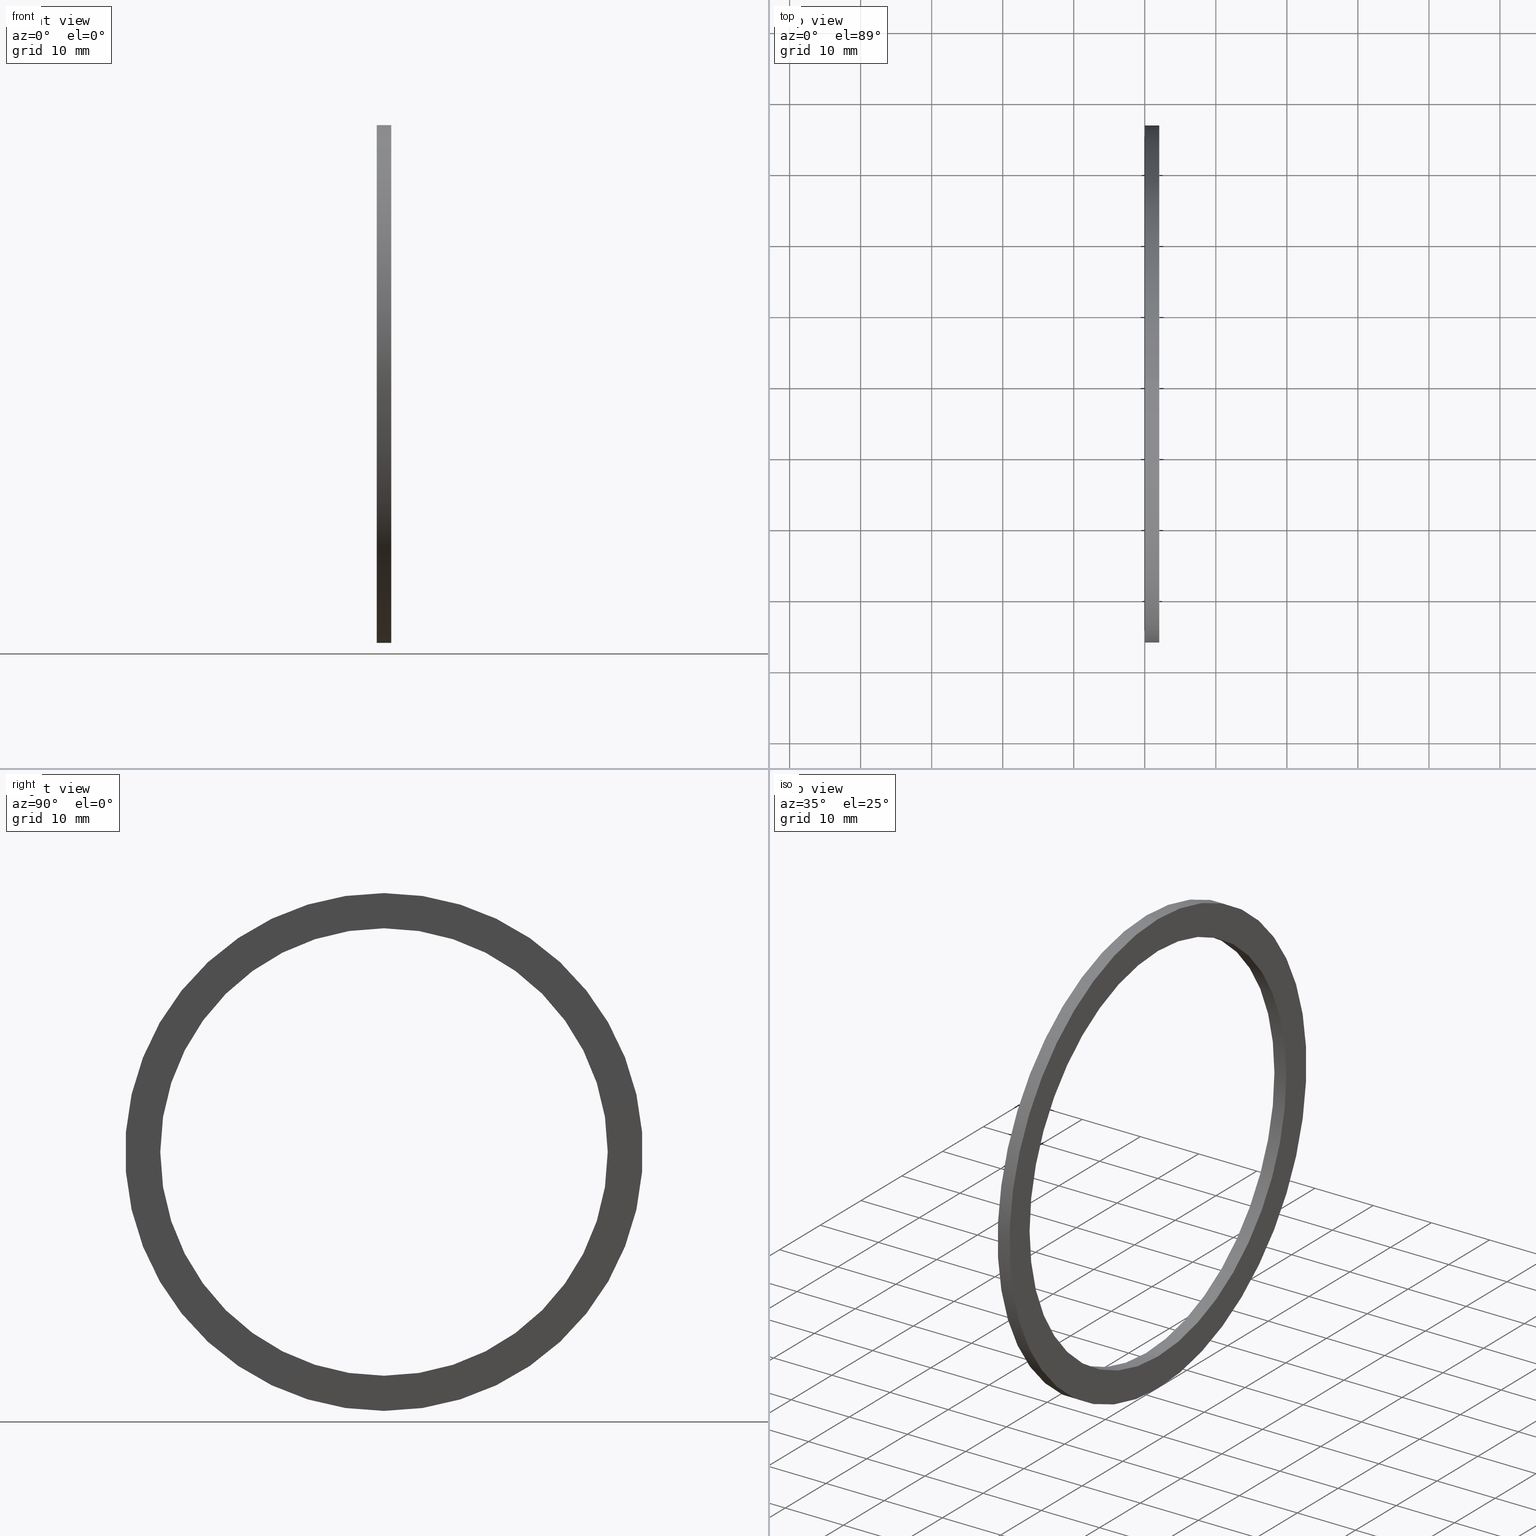
[diagram: canonical four-view strip — front | top / right | iso, engineering-drawing reading convention]
A machine part, canonical four-view strip (front | top / right | iso — engineering-drawing reading convention). The complete STEP part file that produces these views, byte-faithful:
ISO-10303-21;
HEADER;
FILE_DESCRIPTION (( 'STEP AP203' ),
    '1' );
FILE_NAME ('SM-63-VT.STEP',
    '2008-06-25T06:22:19',
    ( 'BSI05' ),
    ( 'BAYSTATE' ),
    'SwSTEP 2.0',
    'SolidWorks 2007',
    '' );
FILE_SCHEMA (( 'CONFIG_CONTROL_DESIGN' ));
ENDSEC;

DATA;
#1 = AXIS2_PLACEMENT_3D ( 'NONE', #206, #129, #218 ) ;
#2 = CLOSED_SHELL ( 'NONE', ( #61, #54, #39, #10, #51, #47 ) ) ;
#3 = EDGE_CURVE ( 'NONE', #67, #66, #20, .T. ) ;
#4 = ORIENTED_EDGE ( 'NONE', *, *, #35, .T. ) ;
#5 = EDGE_LOOP ( 'NONE', ( #43, #36 ) ) ;
#6 = EDGE_CURVE ( 'NONE', #24, #49, #15, .T. ) ;
#7 = EDGE_LOOP ( 'NONE', ( #8, #28 ) ) ;
#8 = ORIENTED_EDGE ( 'NONE', *, *, #27, .F. ) ;
#9 = EDGE_CURVE ( 'NONE', #49, #24, #84, .T. ) ;
#10 = ADVANCED_FACE ( 'NONE', ( #85 ), #77, .T. ) ;
#11 = ORIENTED_EDGE ( 'NONE', *, *, #9, .F. ) ;
#12 = DIRECTION ( 'NONE',  ( 0.0000000000000000000, 0.0000000000000000000, 1.000000000000000000 ) ) ;
#13 = DIRECTION ( 'NONE',  ( -1.000000000000000000, 0.0000000000000000000, 0.0000000000000000000 ) ) ;
#14 = AXIS2_PLACEMENT_3D ( 'NONE', #21, #13, #12 ) ;
#15 = CIRCLE ( 'NONE', #14, 1.435000000000000100 ) ;
#16 = DIRECTION ( 'NONE',  ( 0.0000000000000000000, 0.0000000000000000000, 1.000000000000000000 ) ) ;
#17 = DIRECTION ( 'NONE',  ( -1.000000000000000000, 0.0000000000000000000, 0.0000000000000000000 ) ) ;
#18 = CARTESIAN_POINT ( 'NONE',  ( 0.07999999999999996000, 0.0000000000000000000, 0.0000000000000000000 ) ) ;
#19 = AXIS2_PLACEMENT_3D ( 'NONE', #18, #17, #16 ) ;
#20 = CIRCLE ( 'NONE', #19, 1.435000000000000100 ) ;
#21 = CARTESIAN_POINT ( 'NONE',  ( 0.0000000000000000000, 0.0000000000000000000, 0.0000000000000000000 ) ) ;
#22 = PERSON_AND_ORGANIZATION_ROLE ( 'design_supplier' ) ;
#23 = PERSON_AND_ORGANIZATION ( #143, #153 ) ;
#24 = VERTEX_POINT ( 'NONE', #78 ) ;
#25 = ORIENTED_EDGE ( 'NONE', *, *, #9, .T. ) ;
#26 = ORIENTED_EDGE ( 'NONE', *, *, #6, .T. ) ;
#27 = EDGE_CURVE ( 'NONE', #56, #126, #72, .T. ) ;
#28 = ORIENTED_EDGE ( 'NONE', *, *, #53, .F. ) ;
#29 = EDGE_LOOP ( 'NONE', ( #32, #33, #4, #50 ) ) ;
#30 = ORIENTED_EDGE ( 'NONE', *, *, #123, .T. ) ;
#31 = ORIENTED_EDGE ( 'NONE', *, *, #27, .T. ) ;
#32 = ORIENTED_EDGE ( 'NONE', *, *, #45, .F. ) ;
#33 = ORIENTED_EDGE ( 'NONE', *, *, #3, .T. ) ;
#34 = ORIENTED_EDGE ( 'NONE', *, *, #35, .F. ) ;
#35 = EDGE_CURVE ( 'NONE', #66, #49, #73, .T. ) ;
#36 = ORIENTED_EDGE ( 'NONE', *, *, #127, .T. ) ;
#37 = EDGE_LOOP ( 'NONE', ( #38, #46 ) ) ;
#38 = ORIENTED_EDGE ( 'NONE', *, *, #65, .F. ) ;
#39 = ADVANCED_FACE ( 'NONE', ( #118, #117 ), #115, .T. ) ;
#40 = EDGE_LOOP ( 'NONE', ( #25, #26 ) ) ;
#41 = ORIENTED_EDGE ( 'NONE', *, *, #59, .F. ) ;
#42 = ORIENTED_EDGE ( 'NONE', *, *, #44, .F. ) ;
#43 = ORIENTED_EDGE ( 'NONE', *, *, #44, .T. ) ;
#44 = EDGE_CURVE ( 'NONE', #58, #125, #109, .T. ) ;
#45 = EDGE_CURVE ( 'NONE', #67, #24, #110, .T. ) ;
#46 = ORIENTED_EDGE ( 'NONE', *, *, #3, .F. ) ;
#47 = ADVANCED_FACE ( 'NONE', ( #102 ), #101, .F. ) ;
#48 = EDGE_LOOP ( 'NONE', ( #41, #42, #30, #31 ) ) ;
#49 = VERTEX_POINT ( 'NONE', #96 ) ;
#50 = ORIENTED_EDGE ( 'NONE', *, *, #6, .F. ) ;
#51 = ADVANCED_FACE ( 'NONE', ( #95, #94 ), #93, .T. ) ;
#52 = ORIENTED_EDGE ( 'NONE', *, *, #45, .T. ) ;
#53 = EDGE_CURVE ( 'NONE', #126, #56, #86, .T. ) ;
#54 = ADVANCED_FACE ( 'NONE', ( #217 ), #207, .T. ) ;
#55 = ORIENTED_EDGE ( 'NONE', *, *, #53, .T. ) ;
#56 = VERTEX_POINT ( 'NONE', #181 ) ;
#57 = ORIENTED_EDGE ( 'NONE', *, *, #59, .T. ) ;
#58 = VERTEX_POINT ( 'NONE', #142 ) ;
#59 = EDGE_CURVE ( 'NONE', #125, #126, #138, .T. ) ;
#60 = EDGE_LOOP ( 'NONE', ( #62, #57, #55, #122 ) ) ;
#61 = ADVANCED_FACE ( 'NONE', ( #203 ), #148, .F. ) ;
#62 = ORIENTED_EDGE ( 'NONE', *, *, #127, .F. ) ;
#63 = EDGE_LOOP ( 'NONE', ( #64, #52, #11, #34 ) ) ;
#64 = ORIENTED_EDGE ( 'NONE', *, *, #65, .T. ) ;
#65 = EDGE_CURVE ( 'NONE', #66, #67, #189, .T. ) ;
#66 = VERTEX_POINT ( 'NONE', #184 ) ;
#67 = VERTEX_POINT ( 'NONE', #183 ) ;
#68 = DIRECTION ( 'NONE',  ( 0.0000000000000000000, 0.0000000000000000000, 1.000000000000000000 ) ) ;
#69 = DIRECTION ( 'NONE',  ( -1.000000000000000000, 0.0000000000000000000, 0.0000000000000000000 ) ) ;
#70 = CARTESIAN_POINT ( 'NONE',  ( 0.0000000000000000000, 0.0000000000000000000, 0.0000000000000000000 ) ) ;
#71 = AXIS2_PLACEMENT_3D ( 'NONE', #70, #69, #68 ) ;
#72 = CIRCLE ( 'NONE', #71, 1.240000000000000000 ) ;
#73 = LINE ( 'NONE', #121, #120 ) ;
#74 = DIRECTION ( 'NONE',  ( 0.0000000000000000000, 0.0000000000000000000, 1.000000000000000000 ) ) ;
#75 = DIRECTION ( 'NONE',  ( -1.000000000000000000, 0.0000000000000000000, 0.0000000000000000000 ) ) ;
#76 = AXIS2_PLACEMENT_3D ( 'NONE', #79, #75, #74 ) ;
#77 = CYLINDRICAL_SURFACE ( 'NONE', #76, 1.435000000000000100 ) ;
#78 = CARTESIAN_POINT ( 'NONE',  ( 0.0000000000000000000, 1.757368156776452000E-016, -1.435000000000000100 ) ) ;
#79 = CARTESIAN_POINT ( 'NONE',  ( -1.721125226614714300, 0.0000000000000000000, 0.0000000000000000000 ) ) ;
#80 = DIRECTION ( 'NONE',  ( 0.0000000000000000000, 0.0000000000000000000, 1.000000000000000000 ) ) ;
#81 = DIRECTION ( 'NONE',  ( -1.000000000000000000, 0.0000000000000000000, 0.0000000000000000000 ) ) ;
#82 = CARTESIAN_POINT ( 'NONE',  ( 0.0000000000000000000, 0.0000000000000000000, 0.0000000000000000000 ) ) ;
#83 = AXIS2_PLACEMENT_3D ( 'NONE', #82, #81, #80 ) ;
#84 = CIRCLE ( 'NONE', #83, 1.435000000000000100 ) ;
#85 = FACE_OUTER_BOUND ( 'NONE', #29, .T. ) ;
#86 = CIRCLE ( 'NONE', #1, 1.240000000000000000 ) ;
#87 = PERSON_AND_ORGANIZATION_ROLE ( 'creator' ) ;
#88 = PERSON_AND_ORGANIZATION ( #143, #153 ) ;
#89 = DIRECTION ( 'NONE',  ( 0.0000000000000000000, 0.0000000000000000000, -1.000000000000000000 ) ) ;
#90 = DIRECTION ( 'NONE',  ( 1.000000000000000000, 0.0000000000000000000, 0.0000000000000000000 ) ) ;
#91 = CARTESIAN_POINT ( 'NONE',  ( 0.08000000000000002900, -1.240000000000000000, 0.0000000000000000000 ) ) ;
#92 = AXIS2_PLACEMENT_3D ( 'NONE', #91, #90, #89 ) ;
#93 = PLANE ( 'NONE',  #92 ) ;
#94 = FACE_OUTER_BOUND ( 'NONE', #37, .T. ) ;
#95 = FACE_BOUND ( 'NONE', #5, .T. ) ;
#96 = CARTESIAN_POINT ( 'NONE',  ( 0.0000000000000000000, 0.0000000000000000000, 1.435000000000000100 ) ) ;
#97 = DIRECTION ( 'NONE',  ( 0.0000000000000000000, 0.0000000000000000000, 1.000000000000000000 ) ) ;
#98 = DIRECTION ( 'NONE',  ( -1.000000000000000000, 0.0000000000000000000, 0.0000000000000000000 ) ) ;
#99 = CARTESIAN_POINT ( 'NONE',  ( -1.721125226614714300, 0.0000000000000000000, 0.0000000000000000000 ) ) ;
#100 = AXIS2_PLACEMENT_3D ( 'NONE', #99, #98, #97 ) ;
#101 = CYLINDRICAL_SURFACE ( 'NONE', #100, 1.240000000000000000 ) ;
#102 = FACE_OUTER_BOUND ( 'NONE', #48, .T. ) ;
#103 = DIRECTION ( 'NONE',  ( -1.000000000000000000, 0.0000000000000000000, 0.0000000000000000000 ) ) ;
#104 = VECTOR ( 'NONE', #103, 39.37007874015748100 ) ;
#105 = CARTESIAN_POINT ( 'NONE',  ( -1.721125226614714300, 1.757368156776452000E-016, -1.435000000000000100 ) ) ;
#106 = DIRECTION ( 'NONE',  ( 0.0000000000000000000, 0.0000000000000000000, 1.000000000000000000 ) ) ;
#107 = DIRECTION ( 'NONE',  ( -1.000000000000000000, 0.0000000000000000000, 0.0000000000000000000 ) ) ;
#108 = AXIS2_PLACEMENT_3D ( 'NONE', #116, #107, #106 ) ;
#109 = CIRCLE ( 'NONE', #108, 1.240000000000000000 ) ;
#110 = LINE ( 'NONE', #105, #104 ) ;
#111 = DIRECTION ( 'NONE',  ( 0.0000000000000000000, 0.0000000000000000000, 1.000000000000000000 ) ) ;
#112 = DIRECTION ( 'NONE',  ( -1.000000000000000000, 0.0000000000000000000, 0.0000000000000000000 ) ) ;
#113 = CARTESIAN_POINT ( 'NONE',  ( 2.112445960343600800E-017, -1.240000000000000000, 0.0000000000000000000 ) ) ;
#114 = AXIS2_PLACEMENT_3D ( 'NONE', #113, #112, #111 ) ;
#115 = PLANE ( 'NONE',  #114 ) ;
#116 = CARTESIAN_POINT ( 'NONE',  ( 0.07999999999999996000, 0.0000000000000000000, 0.0000000000000000000 ) ) ;
#117 = FACE_BOUND ( 'NONE', #7, .T. ) ;
#118 = FACE_OUTER_BOUND ( 'NONE', #40, .T. ) ;
#119 = DIRECTION ( 'NONE',  ( -1.000000000000000000, 0.0000000000000000000, 0.0000000000000000000 ) ) ;
#120 = VECTOR ( 'NONE', #119, 39.37007874015748100 ) ;
#121 = CARTESIAN_POINT ( 'NONE',  ( -1.721125226614714300, 0.0000000000000000000, 1.435000000000000100 ) ) ;
#122 = ORIENTED_EDGE ( 'NONE', *, *, #123, .F. ) ;
#123 = EDGE_CURVE ( 'NONE', #58, #56, #216, .T. ) ;
#124 = MANIFOLD_SOLID_BREP ( 'NONE', #2 ) ;
#125 = VERTEX_POINT ( 'NONE', #139 ) ;
#126 = VERTEX_POINT ( 'NONE', #209 ) ;
#127 = EDGE_CURVE ( 'NONE', #125, #58, #156, .T. ) ;
#128 = CC_DESIGN_PERSON_AND_ORGANIZATION_ASSIGNMENT ( #88, #87, ( #174 ) ) ;
#129 = DIRECTION ( 'NONE',  ( -1.000000000000000000, 0.0000000000000000000, 0.0000000000000000000 ) ) ;
#130 =( LENGTH_UNIT ( ) NAMED_UNIT ( * ) SI_UNIT ( $, .METRE. ) );
#131 = DIRECTION ( 'NONE',  ( 0.0000000000000000000, 0.0000000000000000000, 1.000000000000000000 ) ) ;
#132 = DIRECTION ( 'NONE',  ( -1.000000000000000000, 0.0000000000000000000, 0.0000000000000000000 ) ) ;
#133 = DIRECTION ( 'NONE',  ( -1.000000000000000000, 0.0000000000000000000, 0.0000000000000000000 ) ) ;
#134 = AXIS2_PLACEMENT_3D ( 'NONE', #161, #133, #154 ) ;
#135 = LENGTH_MEASURE_WITH_UNIT ( LENGTH_MEASURE( 0.02539999999999999900 ), #130 );
#136 = UNCERTAINTY_MEASURE_WITH_UNIT (LENGTH_MEASURE( 1.000000000000000100E-005 ), #182, 'distance_accuracy_value', 'NONE');
#137 = CARTESIAN_POINT ( 'NONE',  ( -1.721125226614714300, 1.518562030942717800E-016, -1.240000000000000000 ) ) ;
#138 = LINE ( 'NONE', #137, #212 ) ;
#139 = CARTESIAN_POINT ( 'NONE',  ( 0.07999999999999996000, 1.518562030942717800E-016, -1.240000000000000000 ) ) ;
#140 = DIRECTION ( 'NONE',  ( -1.000000000000000000, 0.0000000000000000000, 0.0000000000000000000 ) ) ;
#141 =( NAMED_UNIT ( * ) PLANE_ANGLE_UNIT ( ) SI_UNIT ( $, .RADIAN. ) );
#142 = CARTESIAN_POINT ( 'NONE',  ( 0.07999999999999996000, 0.0000000000000000000, 1.240000000000000000 ) ) ;
#143 = PERSON ( 'UNSPECIFIED', 'UNSPECIFIED', 'UNSPECIFIED', ('UNSPECIFIED'), ('UNSPECIFIED'), ('UNSPECIFIED') ) ;
#144 = PRODUCT ( 'SM-63-VT', 'SM-63-VT', '', ( #145 ) ) ;
#145 = MECHANICAL_CONTEXT ( 'NONE', #147, 'mechanical' ) ;
#146 = APPLICATION_PROTOCOL_DEFINITION ( 'international standard', 'config_control_design', 1994, #147 ) ;
#147 = APPLICATION_CONTEXT ( 'configuration controlled 3d designs of mechanical parts and assemblies' ) ;
#148 = CYLINDRICAL_SURFACE ( 'NONE', #205, 1.240000000000000000 ) ;
#149 = DIRECTION ( 'NONE',  ( 1.000000000000000000, 0.0000000000000000000, 0.0000000000000000000 ) ) ;
#150 = CC_DESIGN_PERSON_AND_ORGANIZATION_ASSIGNMENT ( #152, #151, ( #144 ) ) ;
#151 = PERSON_AND_ORGANIZATION_ROLE ( 'design_owner' ) ;
#152 = PERSON_AND_ORGANIZATION ( #143, #153 ) ;
#153 = ORGANIZATION ( 'UNSPECIFIED', 'UNSPECIFIED', '' ) ;
#154 = DIRECTION ( 'NONE',  ( 0.0000000000000000000, 0.0000000000000000000, 1.000000000000000000 ) ) ;
#155 = ADVANCED_BREP_SHAPE_REPRESENTATION ( 'SM-63-VT', ( #124, #202 ), #180 ) ;
#156 = CIRCLE ( 'NONE', #159, 1.240000000000000000 ) ;
#157 =( NAMED_UNIT ( * ) SI_UNIT ( $, .STERADIAN. ) SOLID_ANGLE_UNIT ( ) );
#158 = CARTESIAN_POINT ( 'NONE',  ( 0.07999999999999996000, 0.0000000000000000000, 0.0000000000000000000 ) ) ;
#159 = AXIS2_PLACEMENT_3D ( 'NONE', #158, #132, #131 ) ;
#160 = DIRECTION ( 'NONE',  ( 0.0000000000000000000, 0.0000000000000000000, 1.000000000000000000 ) ) ;
#161 = CARTESIAN_POINT ( 'NONE',  ( -1.721125226614714300, 0.0000000000000000000, 0.0000000000000000000 ) ) ;
#162 = CC_DESIGN_PERSON_AND_ORGANIZATION_ASSIGNMENT ( #23, #22, ( #174 ) ) ;
#163 = CC_DESIGN_APPROVAL ( #171, ( #174 ) ) ;
#164 = APPROVAL_DATE_TIME ( #165, #171 ) ;
#165 = DATE_AND_TIME ( #166, #167 ) ;
#166 = CALENDAR_DATE ( 2008, 25, 6 ) ;
#167 = LOCAL_TIME ( 11, 52, 19.00000000000000000, #168 ) ;
#168 = COORDINATED_UNIVERSAL_TIME_OFFSET ( 5, 30, .AHEAD. ) ;
#169 = APPROVAL_PERSON_ORGANIZATION ( #173, #171, #170 ) ;
#170 = APPROVAL_ROLE ( '' ) ;
#171 = APPROVAL ( #172, 'UNSPECIFIED' ) ;
#172 = APPROVAL_STATUS ( 'not_yet_approved' ) ;
#173 = PERSON_AND_ORGANIZATION ( #143, #153 ) ;
#174 = PRODUCT_DEFINITION_FORMATION_WITH_SPECIFIED_SOURCE ( 'ANY', '', #144, .NOT_KNOWN. ) ;
#175 = CC_DESIGN_DATE_AND_TIME_ASSIGNMENT ( #177, #176, ( #198 ) ) ;
#176 = DATE_TIME_ROLE ( 'creation_date' ) ;
#177 = DATE_AND_TIME ( #178, #179 ) ;
#178 = CALENDAR_DATE ( 2008, 25, 6 ) ;
#179 = LOCAL_TIME ( 11, 52, 19.00000000000000000, #219 ) ;
#180 =( GEOMETRIC_REPRESENTATION_CONTEXT ( 3 ) GLOBAL_UNCERTAINTY_ASSIGNED_CONTEXT ( ( #136 ) ) GLOBAL_UNIT_ASSIGNED_CONTEXT ( ( #182, #141, #157 ) ) REPRESENTATION_CONTEXT ( 'NONE', 'WORKASPACE' ) );
#181 = CARTESIAN_POINT ( 'NONE',  ( 0.0000000000000000000, 0.0000000000000000000, 1.240000000000000000 ) ) ;
#182 =( CONVERSION_BASED_UNIT ( 'INCH', #135 ) LENGTH_UNIT ( ) NAMED_UNIT ( #208 ) );
#183 = CARTESIAN_POINT ( 'NONE',  ( 0.07999999999999996000, 1.757368156776452000E-016, -1.435000000000000100 ) ) ;
#184 = CARTESIAN_POINT ( 'NONE',  ( 0.07999999999999996000, 0.0000000000000000000, 1.435000000000000100 ) ) ;
#185 = DIRECTION ( 'NONE',  ( 0.0000000000000000000, 0.0000000000000000000, 1.000000000000000000 ) ) ;
#186 = DIRECTION ( 'NONE',  ( -1.000000000000000000, 0.0000000000000000000, 0.0000000000000000000 ) ) ;
#187 = AXIS2_PLACEMENT_3D ( 'NONE', #213, #186, #185 ) ;
#188 = CARTESIAN_POINT ( 'NONE',  ( 0.0000000000000000000, 0.0000000000000000000, 0.0000000000000000000 ) ) ;
#189 = CIRCLE ( 'NONE', #187, 1.435000000000000100 ) ;
#190 = DIRECTION ( 'NONE',  ( -1.000000000000000000, 0.0000000000000000000, 0.0000000000000000000 ) ) ;
#191 = LOCAL_TIME ( 11, 52, 19.00000000000000000, #192 ) ;
#192 = COORDINATED_UNIVERSAL_TIME_OFFSET ( 5, 30, .AHEAD. ) ;
#193 = APPROVAL_PERSON_ORGANIZATION ( #197, #195, #194 ) ;
#194 = APPROVAL_ROLE ( '' ) ;
#195 = APPROVAL ( #196, 'UNSPECIFIED' ) ;
#196 = APPROVAL_STATUS ( 'not_yet_approved' ) ;
#197 = PERSON_AND_ORGANIZATION ( #143, #153 ) ;
#198 = PRODUCT_DEFINITION ( 'UNKNOWN', '', #174, #199 ) ;
#199 = DESIGN_CONTEXT ( 'detailed design', #201, 'design' ) ;
#200 = APPLICATION_PROTOCOL_DEFINITION ( 'international standard', 'config_control_design', 1994, #201 ) ;
#201 = APPLICATION_CONTEXT ( 'configuration controlled 3d designs of mechanical parts and assemblies' ) ;
#202 = AXIS2_PLACEMENT_3D ( 'NONE', #188, #160, #149 ) ;
#203 = FACE_OUTER_BOUND ( 'NONE', #60, .T. ) ;
#204 = CARTESIAN_POINT ( 'NONE',  ( -1.721125226614714300, 0.0000000000000000000, 0.0000000000000000000 ) ) ;
#205 = AXIS2_PLACEMENT_3D ( 'NONE', #204, #211, #210 ) ;
#206 = CARTESIAN_POINT ( 'NONE',  ( 0.0000000000000000000, 0.0000000000000000000, 0.0000000000000000000 ) ) ;
#207 = CYLINDRICAL_SURFACE ( 'NONE', #134, 1.435000000000000100 ) ;
#208 = DIMENSIONAL_EXPONENTS ( 1.000000000000000000, 0.0000000000000000000, 0.0000000000000000000, 0.0000000000000000000, 0.0000000000000000000, 0.0000000000000000000, 0.0000000000000000000 ) ;
#209 = CARTESIAN_POINT ( 'NONE',  ( 0.0000000000000000000, 1.518562030942717800E-016, -1.240000000000000000 ) ) ;
#210 = DIRECTION ( 'NONE',  ( 0.0000000000000000000, 0.0000000000000000000, 1.000000000000000000 ) ) ;
#211 = DIRECTION ( 'NONE',  ( -1.000000000000000000, 0.0000000000000000000, 0.0000000000000000000 ) ) ;
#212 = VECTOR ( 'NONE', #190, 39.37007874015748100 ) ;
#213 = CARTESIAN_POINT ( 'NONE',  ( 0.07999999999999996000, 0.0000000000000000000, 0.0000000000000000000 ) ) ;
#214 = VECTOR ( 'NONE', #140, 39.37007874015748100 ) ;
#215 = CARTESIAN_POINT ( 'NONE',  ( -1.721125226614714300, 0.0000000000000000000, 1.240000000000000000 ) ) ;
#216 = LINE ( 'NONE', #215, #214 ) ;
#217 = FACE_OUTER_BOUND ( 'NONE', #63, .T. ) ;
#218 = DIRECTION ( 'NONE',  ( 0.0000000000000000000, 0.0000000000000000000, 1.000000000000000000 ) ) ;
#219 = COORDINATED_UNIVERSAL_TIME_OFFSET ( 5, 30, .AHEAD. ) ;
#220 = CC_DESIGN_PERSON_AND_ORGANIZATION_ASSIGNMENT ( #222, #221, ( #198 ) ) ;
#221 = PERSON_AND_ORGANIZATION_ROLE ( 'creator' ) ;
#222 = PERSON_AND_ORGANIZATION ( #143, #153 ) ;
#223 = CC_DESIGN_APPROVAL ( #195, ( #198 ) ) ;
#224 = APPROVAL_DATE_TIME ( #225, #195 ) ;
#225 = DATE_AND_TIME ( #226, #191 ) ;
#226 = CALENDAR_DATE ( 2008, 25, 6 ) ;
#227 = CC_DESIGN_PERSON_AND_ORGANIZATION_ASSIGNMENT ( #252, #235, ( #242 ) ) ;
#228 = APPROVAL_DATE_TIME ( #248, #245 ) ;
#229 = CC_DESIGN_SECURITY_CLASSIFICATION ( #242, ( #174 ) ) ;
#230 = PRODUCT_RELATED_PRODUCT_CATEGORY ( 'detail', '', ( #144 ) ) ;
#231 = PRODUCT_DEFINITION_SHAPE ( 'NONE', 'NONE',  #198 ) ;
#232 = LOCAL_TIME ( 11, 52, 19.00000000000000000, #244 ) ;
#233 = SECURITY_CLASSIFICATION_LEVEL ( 'unclassified' ) ;
#234 = LOCAL_TIME ( 11, 52, 19.00000000000000000, #240 ) ;
#235 = PERSON_AND_ORGANIZATION_ROLE ( 'classification_officer' ) ;
#236 = DATE_TIME_ROLE ( 'classification_date' ) ;
#237 = APPROVAL_ROLE ( '' ) ;
#238 = CC_DESIGN_APPROVAL ( #245, ( #242 ) ) ;
#239 = CALENDAR_DATE ( 2008, 25, 6 ) ;
#240 = COORDINATED_UNIVERSAL_TIME_OFFSET ( 5, 30, .AHEAD. ) ;
#241 = CC_DESIGN_DATE_AND_TIME_ASSIGNMENT ( #249, #236, ( #242 ) ) ;
#242 = SECURITY_CLASSIFICATION ( '', '', #233 ) ;
#243 = PERSON_AND_ORGANIZATION ( #143, #153 ) ;
#244 = COORDINATED_UNIVERSAL_TIME_OFFSET ( 5, 30, .AHEAD. ) ;
#245 = APPROVAL ( #251, 'UNSPECIFIED' ) ;
#246 = APPROVAL_PERSON_ORGANIZATION ( #243, #245, #237 ) ;
#247 = SHAPE_DEFINITION_REPRESENTATION ( #231, #155 ) ;
#248 = DATE_AND_TIME ( #239, #232 ) ;
#249 = DATE_AND_TIME ( #250, #234 ) ;
#250 = CALENDAR_DATE ( 2008, 25, 6 ) ;
#251 = APPROVAL_STATUS ( 'not_yet_approved' ) ;
#252 = PERSON_AND_ORGANIZATION ( #143, #153 ) ;
ENDSEC;
END-ISO-10303-21;
